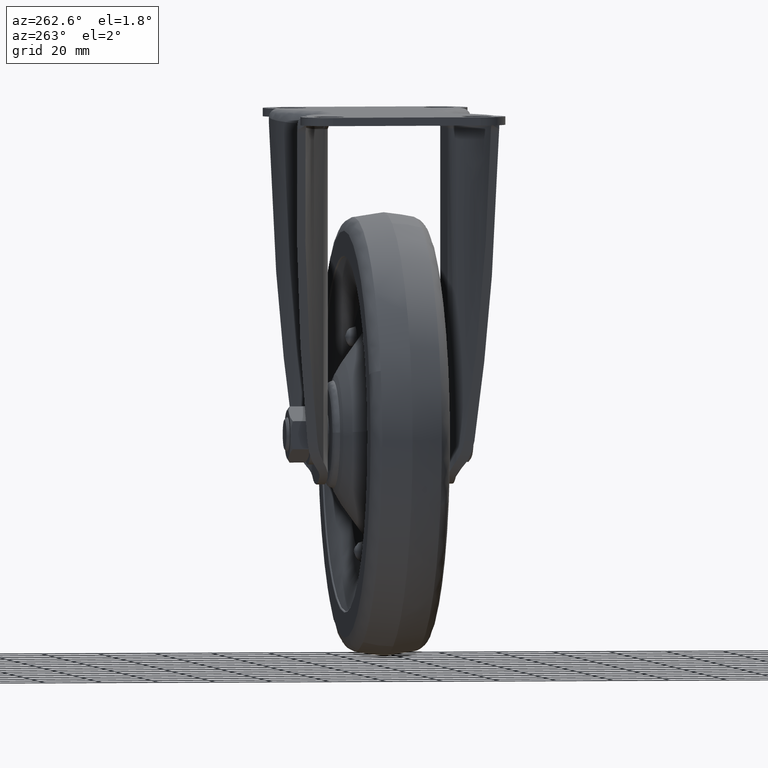
[diagram: clean part render]
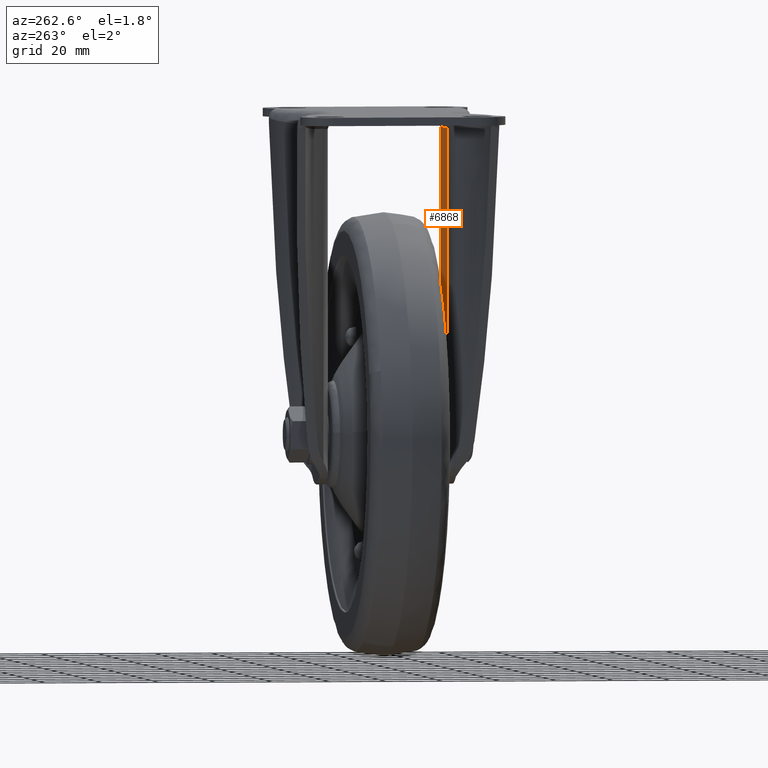
[diagram: same view with one face highlighted and labeled with its STEP entity id]
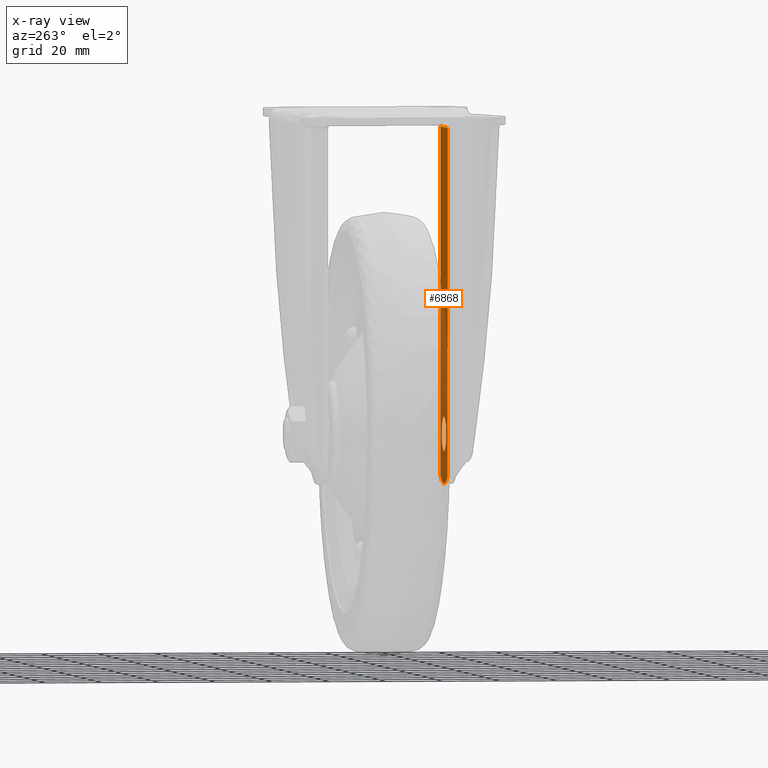
[diagram: x-ray of the same camera — body ghosted, the highlighted face saturated]
A machine part, auxiliary view. The second image highlights one B-rep face of the part: STEP entity #6868.
The next image is the same camera in x-ray: the body ghosted, the highlighted face saturated — about 45% of this face is hidden behind the body in this view.
In plain terms, the highlighted face is a freeform B-spline surface patch.
Its self-contained STEP definition (entity closure, byte-faithful):
#5601=CARTESIAN_POINT('',(0.0,-21.100000000000001,-106.500001000000000));
#5602=VERTEX_POINT('',#5601);
#5603=CARTESIAN_POINT('',(-5.981503005434395,-21.100000000000001,-112.029245503494390));
#5604=VERTEX_POINT('',#5603);
#5605=CARTESIAN_POINT('',(0.0,-21.100000000000001,-106.500001000000000));
#5606=CARTESIAN_POINT('',(-5.546342025002845,-21.100000000000001,-106.500001000000010));
#5607=CARTESIAN_POINT('',(-5.981503005434396,-21.100000000000001,-112.029245503494380));
#5615=(BOUNDED_CURVE()B_SPLINE_CURVE(2,(#5605,#5606,#5607),.UNSPECIFIED.,.F.,.U.)B_SPLINE_CURVE_WITH_KNOTS((3,3),(0.0,0.236331300615638),.UNSPECIFIED.)CURVE()GEOMETRIC_REPRESENTATION_ITEM()RATIONAL_B_SPLINE_CURVE((1.0,0.723120658625264,0.969723356136069))REPRESENTATION_ITEM(''));
#5616=EDGE_CURVE('',#5602,#5604,#5615,.T.);
#5618=CARTESIAN_POINT('',(5.981503005434396,-21.100000000000001,-112.970754496505610));
#5619=VERTEX_POINT('',#5618);
#5620=CARTESIAN_POINT('',(5.981503005434398,-21.099999999999998,-112.970754496505660));
#5621=CARTESIAN_POINT('',(5.999999000000000,-21.100000000000005,-112.735740603056100));
#5622=CARTESIAN_POINT('',(5.999999000000000,-21.100000000000001,-112.500000000000000));
#5623=CARTESIAN_POINT('',(5.999998999999999,-21.100000000000009,-106.500001000000030));
#5624=CARTESIAN_POINT('',(0.0,-21.100000000000001,-106.500001000000000));
#5632=(BOUNDED_CURVE()B_SPLINE_CURVE(2,(#5620,#5621,#5622,#5623,#5624),.UNSPECIFIED.,.F.,.U.)B_SPLINE_CURVE_WITH_KNOTS((3,2,3),(0.736331300615638,0.750000000000000,1.0),.UNSPECIFIED.)CURVE()GEOMETRIC_REPRESENTATION_ITEM()RATIONAL_B_SPLINE_CURVE((0.969723356136069,0.983986122561283,1.0,0.707106781186548,1.0))REPRESENTATION_ITEM(''));
#5633=EDGE_CURVE('',#5619,#5602,#5632,.T.);
#5700=CARTESIAN_POINT('',(0.0,-21.100000000000001,-118.499999000000000));
#5701=VERTEX_POINT('',#5700);
#5702=CARTESIAN_POINT('',(-5.981503005434396,-21.100000000000005,-112.029245503494290));
#5703=CARTESIAN_POINT('',(-5.999999000000001,-21.099999999999998,-112.264259396943840));
#5704=CARTESIAN_POINT('',(-5.999999000000000,-21.100000000000001,-112.500000000000000));
#5705=CARTESIAN_POINT('',(-5.999998999999999,-21.100000000000009,-118.499998999999990));
#5706=CARTESIAN_POINT('',(0.0,-21.100000000000001,-118.499999000000000));
#5714=(BOUNDED_CURVE()B_SPLINE_CURVE(2,(#5702,#5703,#5704,#5705,#5706),.UNSPECIFIED.,.F.,.U.)B_SPLINE_CURVE_WITH_KNOTS((3,2,3),(0.236331300615638,0.250000000000000,0.500000000000000),.UNSPECIFIED.)CURVE()GEOMETRIC_REPRESENTATION_ITEM()RATIONAL_B_SPLINE_CURVE((0.969723356136068,0.983986122561283,1.0,0.707106781186548,1.0))REPRESENTATION_ITEM(''));
#5715=EDGE_CURVE('',#5604,#5701,#5714,.T.);
#5749=CARTESIAN_POINT('',(0.0,-21.100000000000001,-118.499999000000000));
#5750=CARTESIAN_POINT('',(5.546342025002847,-21.100000000000005,-118.499998999999970));
#5751=CARTESIAN_POINT('',(5.981503005434398,-21.099999999999998,-112.970754496505660));
#5759=(BOUNDED_CURVE()B_SPLINE_CURVE(2,(#5749,#5750,#5751),.UNSPECIFIED.,.F.,.U.)B_SPLINE_CURVE_WITH_KNOTS((3,3),(0.500000000000000,0.736331300615638),.UNSPECIFIED.)CURVE()GEOMETRIC_REPRESENTATION_ITEM()RATIONAL_B_SPLINE_CURVE((1.0,0.723120658625264,0.969723356136069))REPRESENTATION_ITEM(''));
#5760=EDGE_CURVE('',#5701,#5619,#5759,.T.);
#6600=CARTESIAN_POINT('',(-9.973044000000000,-21.100000000000001,-5.400000000000000));
#6601=VERTEX_POINT('',#6600);
#6615=CARTESIAN_POINT('',(-9.973044000000000,-21.100000000000001,-127.172150848835000));
#6616=VERTEX_POINT('',#6615);
#6617=CARTESIAN_POINT('',(-9.973044000000000,-21.100000000000001,-127.172150848835000));
#6618=CARTESIAN_POINT('',(-9.973044000000000,-21.100000000000001,-5.400000000000000));
#6619=QUASI_UNIFORM_CURVE('',1,(#6617,#6618),.UNSPECIFIED.,.F.,.U.);
#6620=EDGE_CURVE('',#6616,#6601,#6619,.T.);
#6662=CARTESIAN_POINT('',(9.973044000000000,-21.100000000000001,-127.172150848835000));
#6663=VERTEX_POINT('',#6662);
#6664=CARTESIAN_POINT('',(9.973044000000000,-21.100000000000001,-5.400000000000000));
#6665=VERTEX_POINT('',#6664);
#6666=CARTESIAN_POINT('',(9.973044000000000,-21.100000000000001,-127.172150848835000));
#6667=CARTESIAN_POINT('',(9.973044000000000,-21.100000000000001,-5.400000000000000));
#6668=QUASI_UNIFORM_CURVE('',1,(#6666,#6667),.UNSPECIFIED.,.F.,.U.);
#6669=EDGE_CURVE('',#6663,#6665,#6668,.T.);
#6835=CARTESIAN_POINT('',(-10.969351056940610,-21.100000000000001,-136.223772021190310));
#6836=CARTESIAN_POINT('',(-10.969351056940610,-21.100000000000001,0.823773208178005));
#6837=CARTESIAN_POINT('',(10.969351591936380,-21.100000000000001,-136.223772021190310));
#6838=CARTESIAN_POINT('',(10.969351591936380,-21.100000000000001,0.823773208178005));
#6839=B_SPLINE_SURFACE_WITH_KNOTS('',1,1,((#6835,#6837),(#6836,#6838)),.UNSPECIFIED.,.F.,.F.,.U.,(2,2),(2,2),(0.0,137.047545229368300),(0.0,21.938702648877001),.UNSPECIFIED.);
#6840=ORIENTED_EDGE('',*,*,#6620,.T.);
#6841=CARTESIAN_POINT('',(-9.973044000000000,-21.100000000000001,-5.400000000000000));
#6842=CARTESIAN_POINT('',(9.973044000000000,-21.100000000000001,-5.400000000000000));
#6843=QUASI_UNIFORM_CURVE('',1,(#6841,#6842),.UNSPECIFIED.,.F.,.U.);
#6844=EDGE_CURVE('',#6601,#6665,#6843,.T.);
#6845=ORIENTED_EDGE('',*,*,#6844,.T.);
#6846=ORIENTED_EDGE('',*,*,#6669,.F.);
#6847=CARTESIAN_POINT('',(9.973044000000060,-21.100000000000001,-127.172150848835100));
#6848=CARTESIAN_POINT('',(6.070873E-015,-21.100000000000001,-133.322329684633640));
#6849=CARTESIAN_POINT('',(-9.973044000000055,-21.100000000000001,-127.172150848835100));
#6857=(BOUNDED_CURVE()B_SPLINE_CURVE(2,(#6847,#6848,#6849),.UNSPECIFIED.,.F.,.U.)CURVE()GEOMETRIC_REPRESENTATION_ITEM()QUASI_UNIFORM_CURVE()RATIONAL_B_SPLINE_CURVE((1.0,0.851165720725804,1.0))REPRESENTATION_ITEM(''));
#6858=EDGE_CURVE('',#6663,#6616,#6857,.T.);
#6859=ORIENTED_EDGE('',*,*,#6858,.T.);
#6860=EDGE_LOOP('',(#6840,#6845,#6846,#6859));
#6861=FACE_OUTER_BOUND('',#6860,.T.);
#6862=ORIENTED_EDGE('',*,*,#5760,.T.);
#6863=ORIENTED_EDGE('',*,*,#5633,.T.);
#6864=ORIENTED_EDGE('',*,*,#5616,.T.);
#6865=ORIENTED_EDGE('',*,*,#5715,.T.);
#6866=EDGE_LOOP('',(#6862,#6863,#6864,#6865));
#6867=FACE_BOUND('',#6866,.T.);
#6868=ADVANCED_FACE('',(#6861,#6867),#6839,.T.);